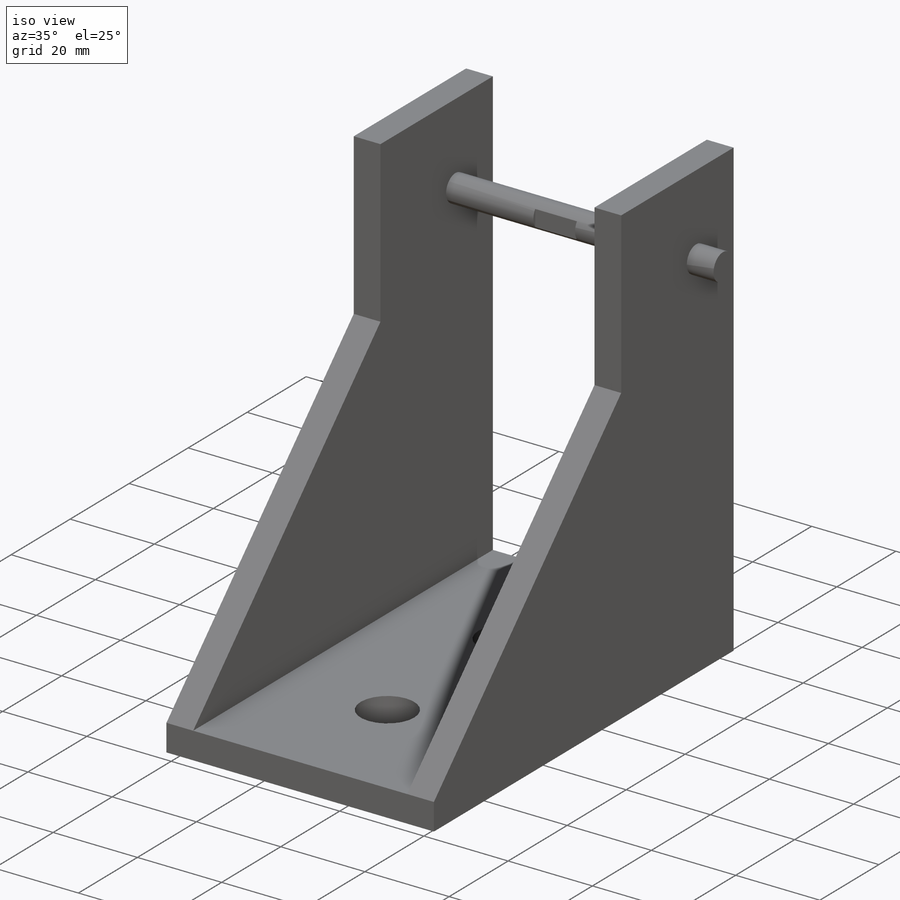
[diagram: iso view]
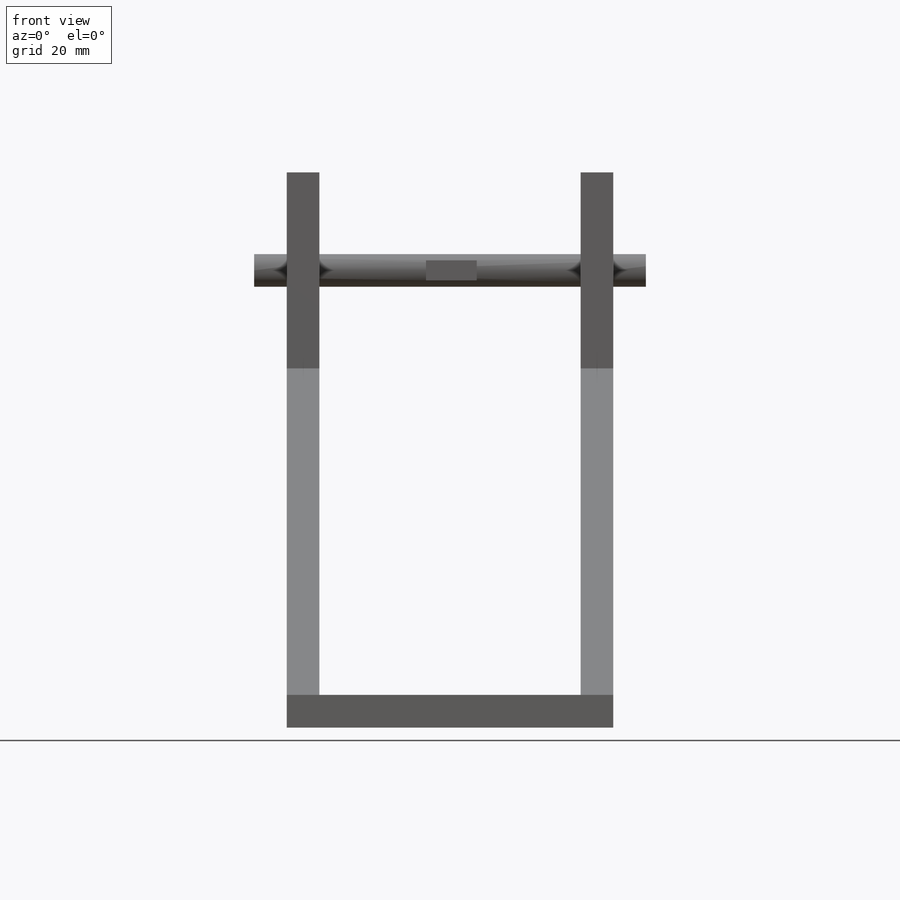
[diagram: front view]
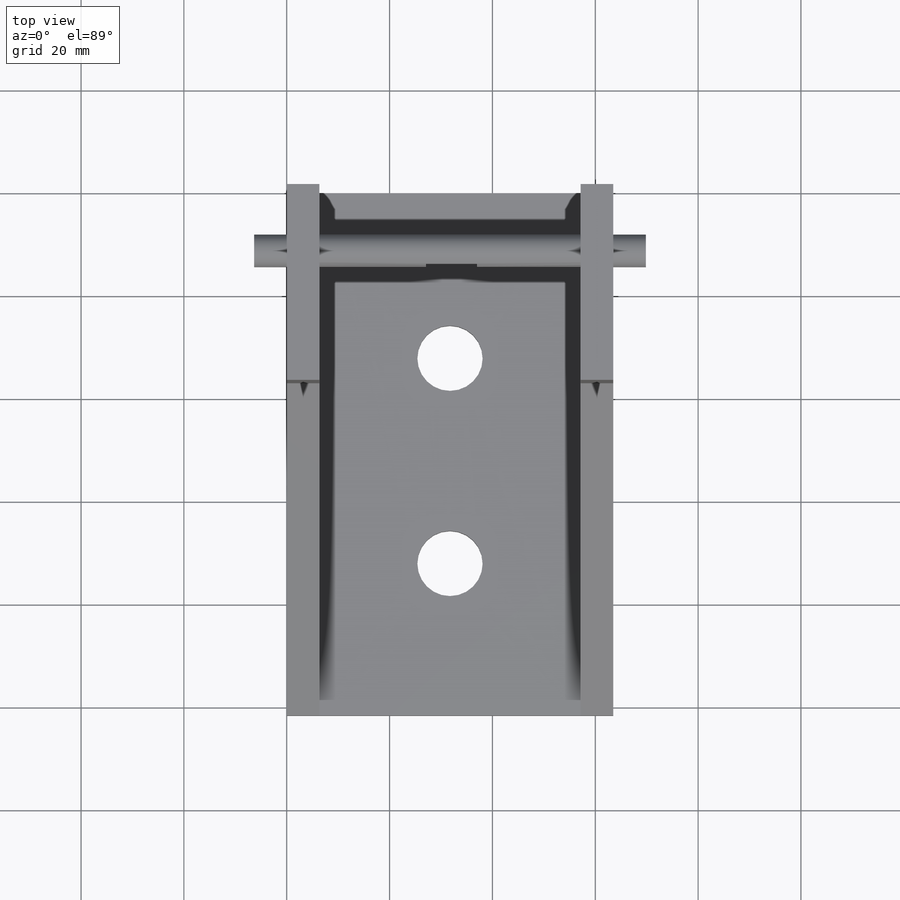
[diagram: top view]
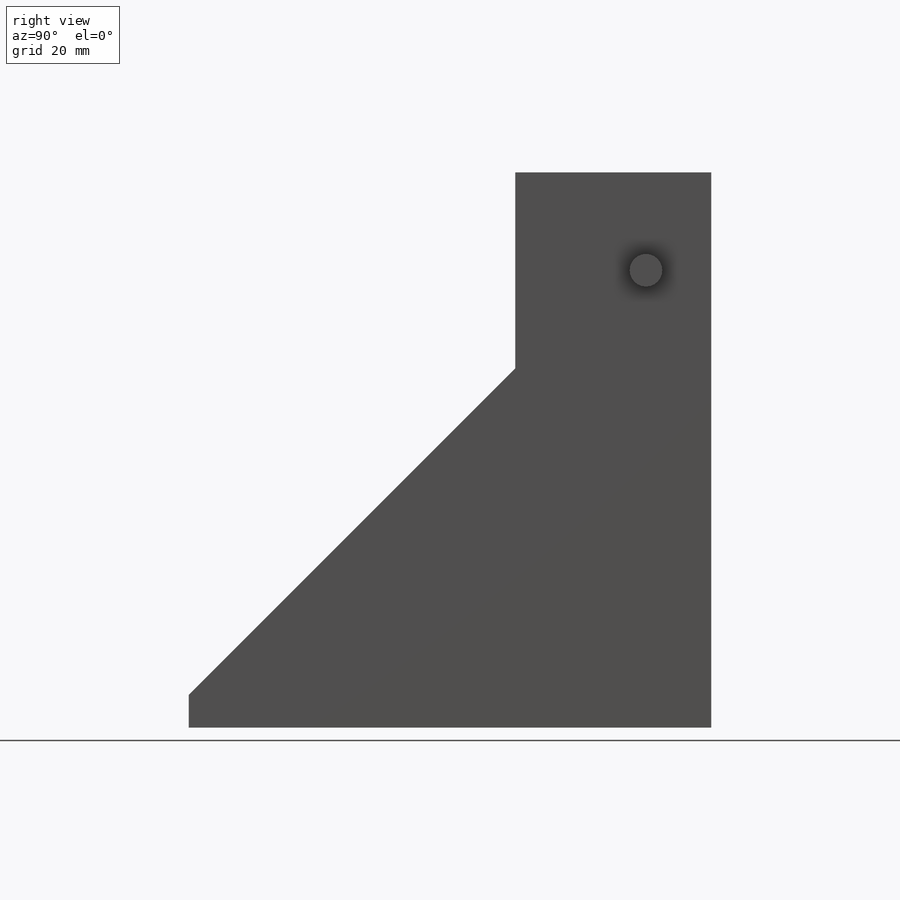
[diagram: right view]
SOLIDWORKS PART (.sldprt)
format: sldprt  version: not decoded by parser v0  size: 241,664 bytes
history: native  units: mm
features: sketch x6, extrude x3, cut_extrude x3, material x1, plane x1, mirror x1 (+11 scaffold rows collapsed)
feature tree (26):
  scaffold x11  (default folders/planes/origin — collapsed)
  material  "Plain Carbon Steel"
  sketch  "Sketch2"  dims[D1=6.35mm D2=63.5mm]
  extrude  "Base"  Depth=101.6mm
  plane  "Plane1"
  sketch  "Sketch4"  dims[c1.D1=~50.099514mm c2.D1=90.0deg c3.D1=~50.099514mm c4.D1=45.0deg c5.D1=38.1mm c5.D2=~91.917522mm c6.D2=45.0deg]
  extrude  "Rib"  Depth=6.35mm
  mirror  "RibCopy"
  sketch  "Sketch5"  dims[D1=6.35mm D2=88.9mm D3=12.7mm D4=17.95mm]
  cut_extrude  "Cut-Extrude1"  [1 undecoded]
  extrude  "Boss-Extrude1"  [1 undecoded]
  sketch  "Sketch5<2>"  dims[D1=63.5mm D2=12.7mm]
  sketch  "Sketch6"  dims[D1=12.7mm D2=25.4mm]
  cut_extrude  "Cut-Extrude2"  [1 undecoded]
  sketch  "Sketch7"
  cut_extrude  "Cut-Extrude3"  Depth=25.4mm
decode coverage: 8 of 13 modeling features carry decoded parameters
note: ~ marks probable driven/reference dimensions
note: 3 parameter values undecoded
summary: no parameter record found for 3 features
note: suppression state not decoded; provenance and decode notes live in map.json
